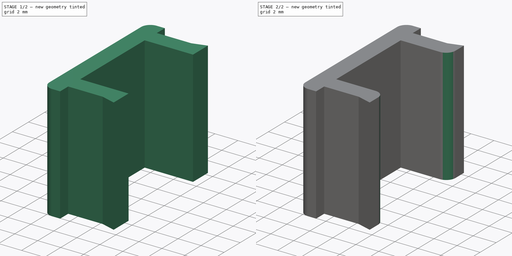
[diagram: build sequence overview — one tinted view per stage of 2, left to right]
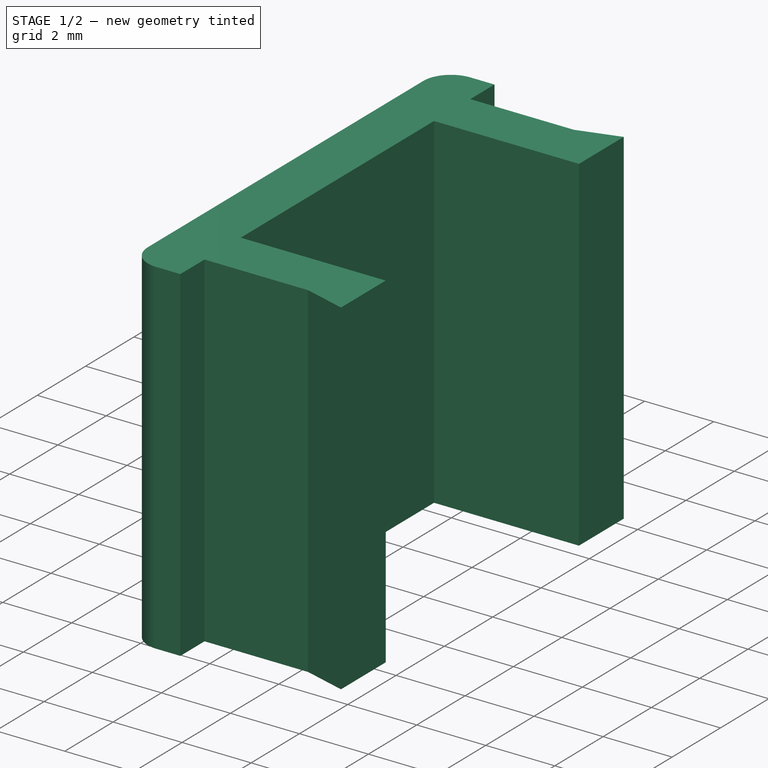
[diagram: stage 1 of 2 — iso view after this stage's code; geometry added in this stage tinted green]
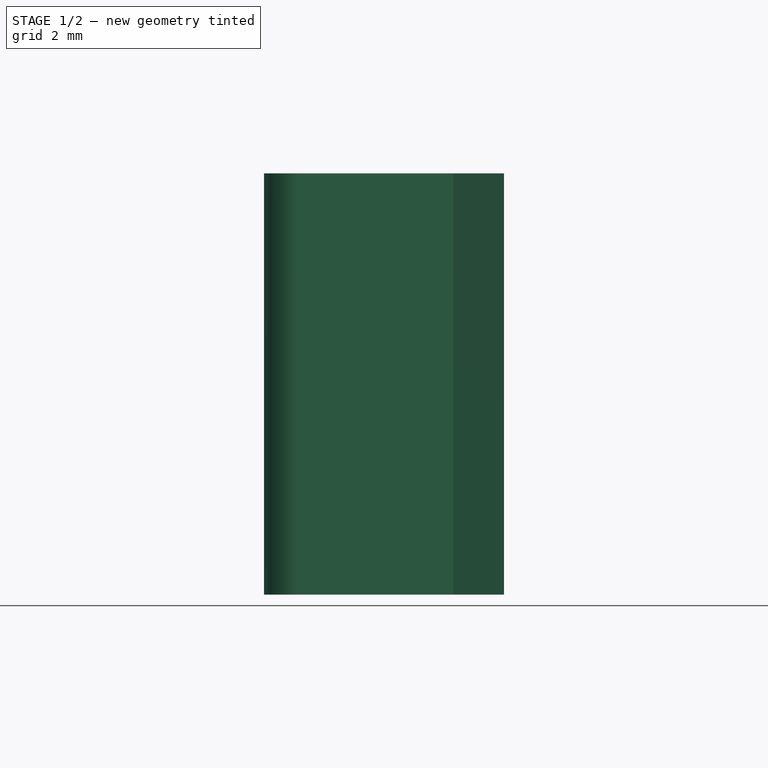
[diagram: stage 1 of 2 — front view after this stage's code; geometry added in this stage tinted green]
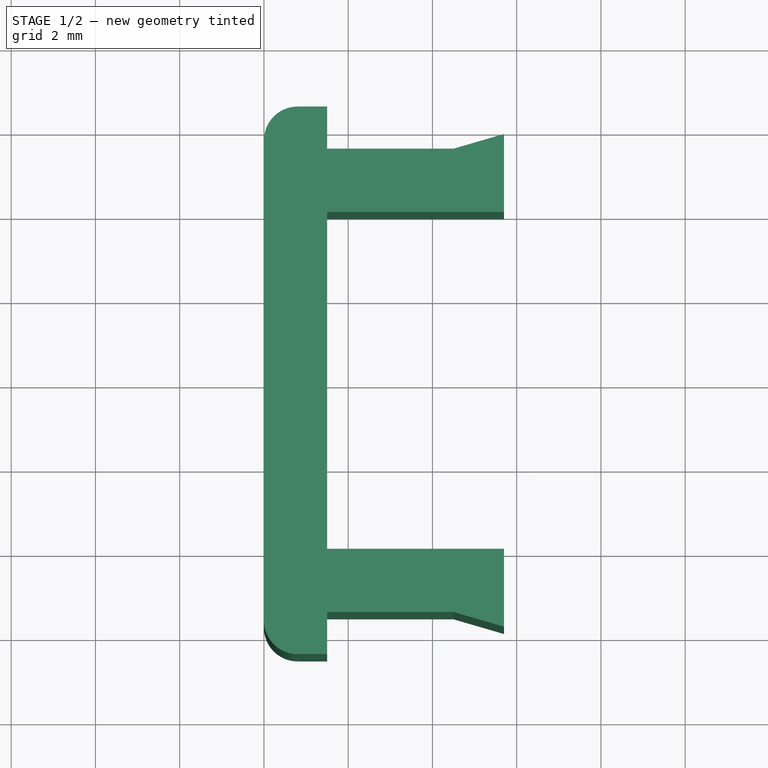
[diagram: stage 1 of 2 — top view after this stage's code; geometry added in this stage tinted green]
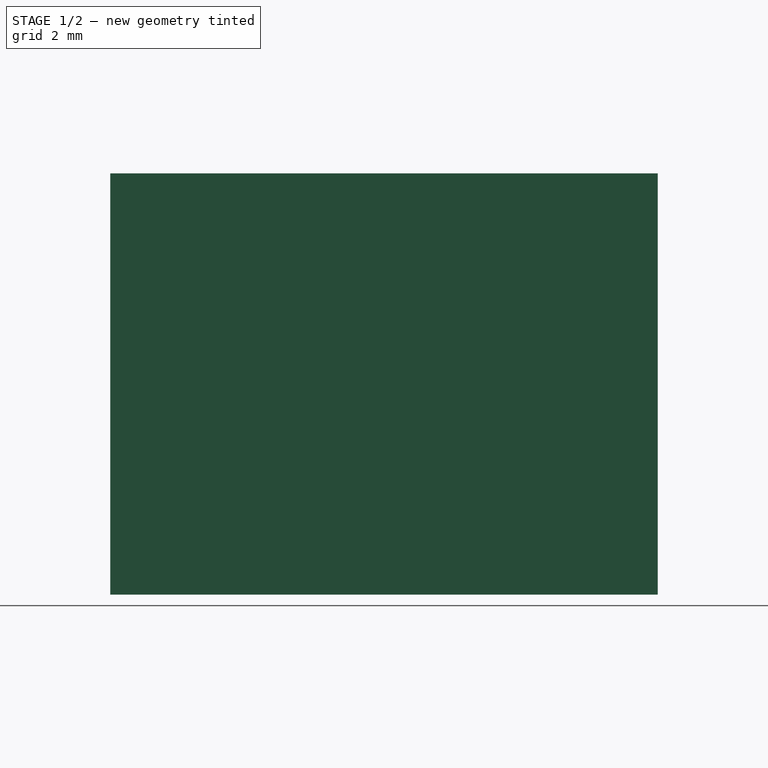
[diagram: stage 1 of 2 — right view after this stage's code; geometry added in this stage tinted green]
FCSTD DOCUMENT  (FreeCAD 0.19R24415 (Git))
Label: FlexLink Cable Clip
License: All rights reserved
LicenseURL: http://en.wikipedia.org/wiki/All_rights_reserved
objects: PartDesign::Fillet×2, Sketcher::SketchObject×1, PartDesign::Pad×1, PartDesign::Body×1
note: 8 computed .brp shape members not serialized (recipe doc carries the construction recipe); baked Part::Feature solids carry a one-line shape summary decoded from their .brp

FEATURE [Sketcher::SketchObject] Sketch
  FullyConstrained = true
  MapMode = 5
  Support = -> [XY_Plane]
  sketch-geometry (16):
    g0: LineSegment StartX=5.7 StartY=-5.85 StartZ=0 EndX=5.7 EndY=-4 EndZ=0
    g1: LineSegment StartX=5.7 StartY=-4 StartZ=0 EndX=1.5 EndY=-4 EndZ=0
    g2: LineSegment StartX=1.5 StartY=-4 StartZ=0 EndX=1.5 EndY=4 EndZ=0
    g3: LineSegment StartX=1.5 StartY=4 StartZ=0 EndX=5.7 EndY=4 EndZ=0
    g4: LineSegment StartX=5.7 StartY=4 StartZ=0 EndX=5.7 EndY=5.85 EndZ=0
    g5: LineSegment StartX=4.5 StartY=5.5 StartZ=0 EndX=5.7 EndY=5.85 EndZ=0
    g6: LineSegment StartX=4.5 StartY=-5.5 StartZ=0 EndX=5.7 EndY=-5.85 EndZ=0
    g7: LineSegment StartX=4.5 StartY=4 StartZ=0 EndX=4.5 EndY=5.5 EndZ=0
    g8: LineSegment StartX=4.5 StartY=5.5 StartZ=0 EndX=1.5 EndY=5.5 EndZ=0
    g9: LineSegment StartX=1.5 StartY=5.5 StartZ=0 EndX=1.5 EndY=6.5 EndZ=0
    g10: LineSegment StartX=1.5 StartY=6.5 StartZ=0 EndX=0 EndY=6.5 EndZ=0
    g11: LineSegment StartX=0 StartY=6.5 StartZ=0 EndX=0 EndY=-6.5 EndZ=0
    g12: LineSegment StartX=0 StartY=-6.5 StartZ=0 EndX=1.5 EndY=-6.5 EndZ=0
    g13: LineSegment StartX=1.5 StartY=-6.5 StartZ=0 EndX=1.5 EndY=-5.5 EndZ=0
    g14: LineSegment StartX=1.5 StartY=-5.5 StartZ=0 EndX=4.5 EndY=-5.5 EndZ=0
    g15: GeomPoint X=1.5 Y=0 Z=0
  constraints (45):
    c: Vertical(g0)
    c: Coincident(g0,g1)
    c: Horizontal(g1)
    c: Coincident(g1,g2)
    c: Vertical(g2)
    c: Horizontal(g3)
    c: Coincident(g3,g4)
    c: Vertical(g4)
    c: Equal(g4,g0)
    c: Equal(g3,g1)
    c: Coincident(g5,g4)
    c: Coincident(g6,g0)
    c: Equal(g6,g5)
    c: Coincident(g3,g2)
    c: PointOnObject(g7,g3)
    c: Coincident(g7,g5)
    c: Vertical(g7)
    c: Coincident(g5,g8)
    c: Horizontal(g8)
    c: Coincident(g8,g9)
    c: Vertical(g9)
    c: Coincident(g9,g10)
    c: PointOnObject(g10,g-2)
    c: Horizontal(g10)
    c: Coincident(g10,g11)
    c: Coincident(g11,g12)
    c: Horizontal(g12)
    c: Coincident(g12,g13)
    c: Vertical(g13)
    c: Coincident(g13,g14)
    c: Coincident(g14,g6)
    c: Horizontal(g14)
    c: Symmetric(g11,g10,g-1)
    c: Equal(g13,g9)
    c: Equal(g12,g10)
    c: DistanceY(g11,g11) = 13
    c: DistanceY(g13,g8) = 11
    c: PointOnObject(g15,g-1)
    c: Symmetric(g1,g2,g15)
    c: DistanceX(g8,g8) = 3
    c: DistanceX(g10,g10) = 1.5
    c: DistanceX(g-1,g15) = 1.5
    c: DistanceY(g7,g7) = 1.5
    c: DistanceY(g0,g4) = 11.7
    c: DistanceX(g3,g3) = 4.2
FEATURE [PartDesign::Pad] Pad
  Direction = (1,1,1)
  Length = 10
  Length2 = 100
  Profile = -> Sketch
  Type = 0
FEATURE [PartDesign::Fillet] Fillet
  Base = -> Pad [Edge26,Edge29]
  BaseFeature = -> Pad
  Radius = 0.8
  SupportTransform = false
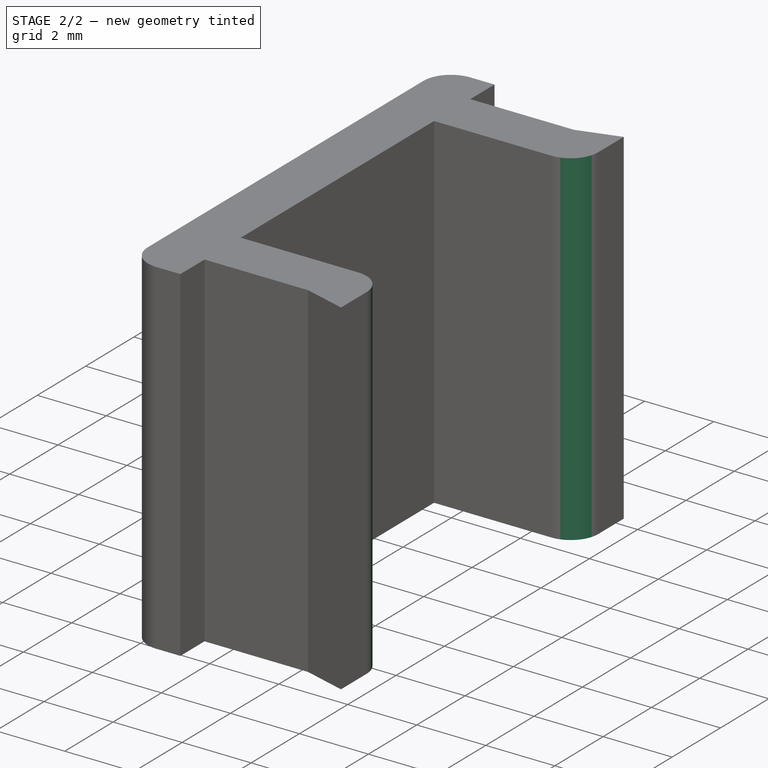
[diagram: stage 2 of 2 — iso view after this stage's code; geometry added in this stage tinted green]
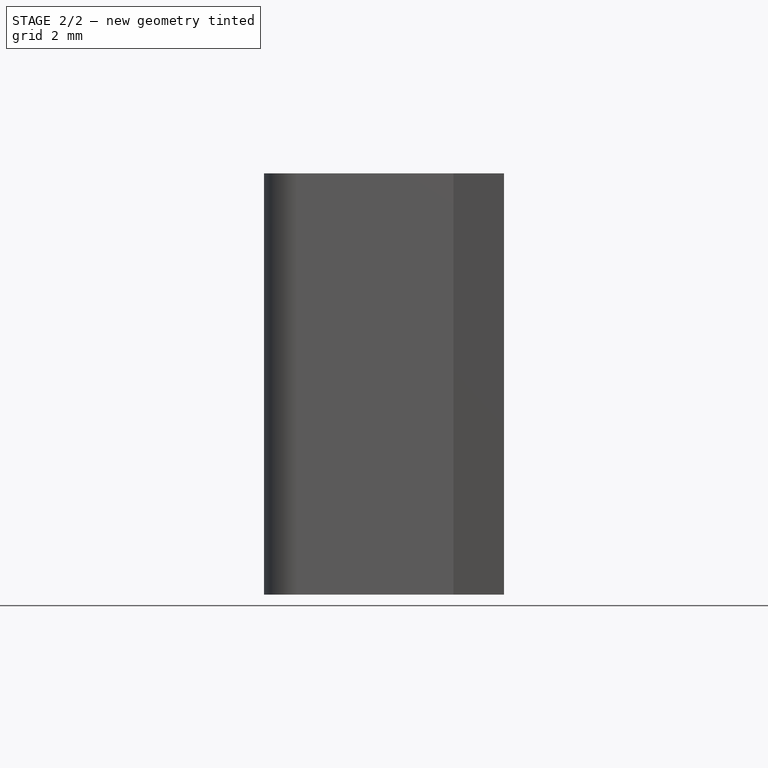
[diagram: stage 2 of 2 — front view after this stage's code; geometry added in this stage tinted green]
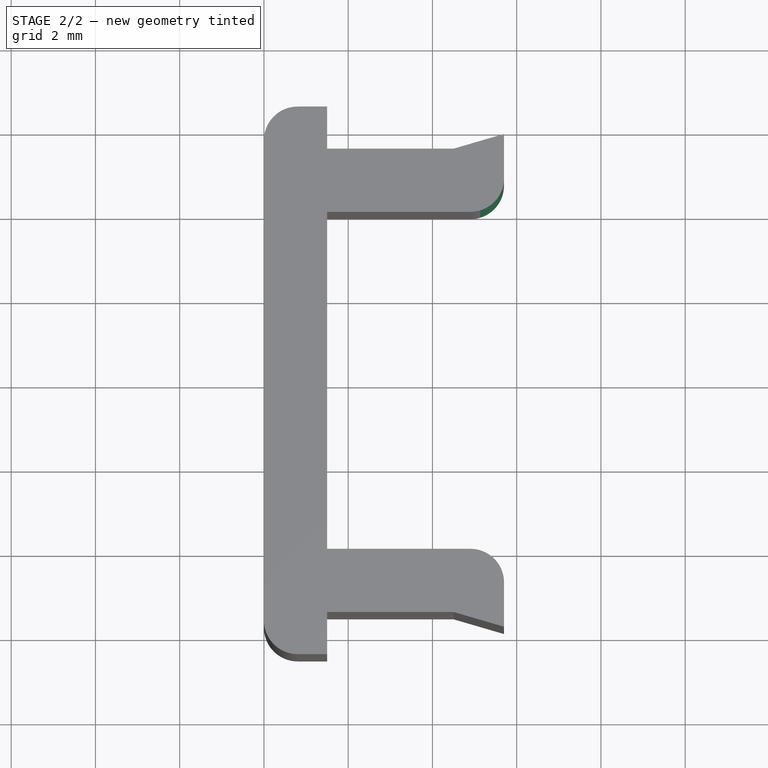
[diagram: stage 2 of 2 — top view after this stage's code; geometry added in this stage tinted green]
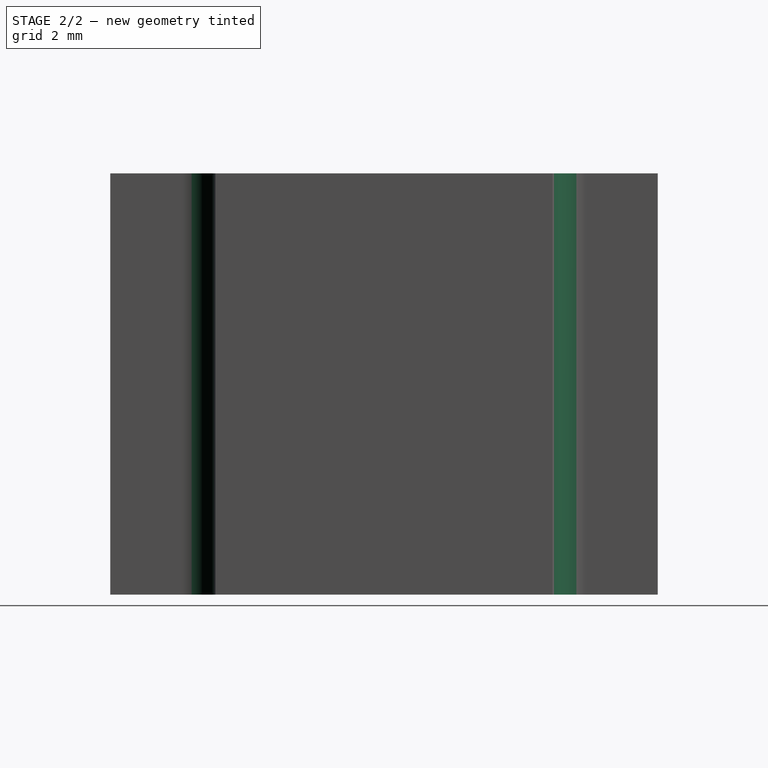
[diagram: stage 2 of 2 — right view after this stage's code; geometry added in this stage tinted green]
FEATURE [PartDesign::Fillet] Fillet001
  Base = -> Fillet [Edge42,Edge48]
  BaseFeature = -> Fillet
  Radius = 0.8
  SupportTransform = false
FEATURE [PartDesign::Body] Body  label="FlexLink Cable Clip"
  Group = -> [Sketch,Pad,Fillet,Fillet001]
  Origin = -> Origin
  Tip = -> Fillet001
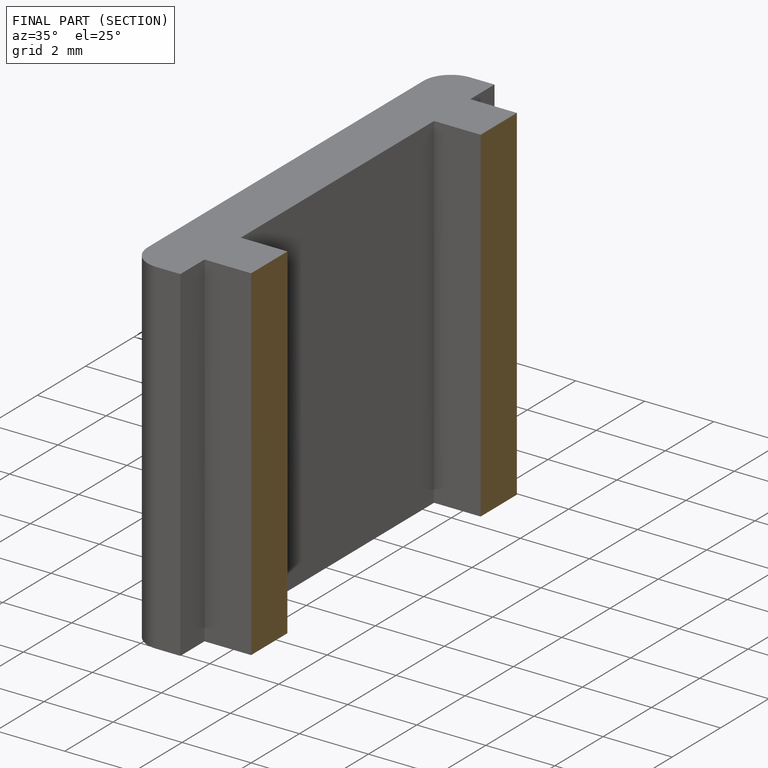
[diagram: finished part — half-section view (interior)]
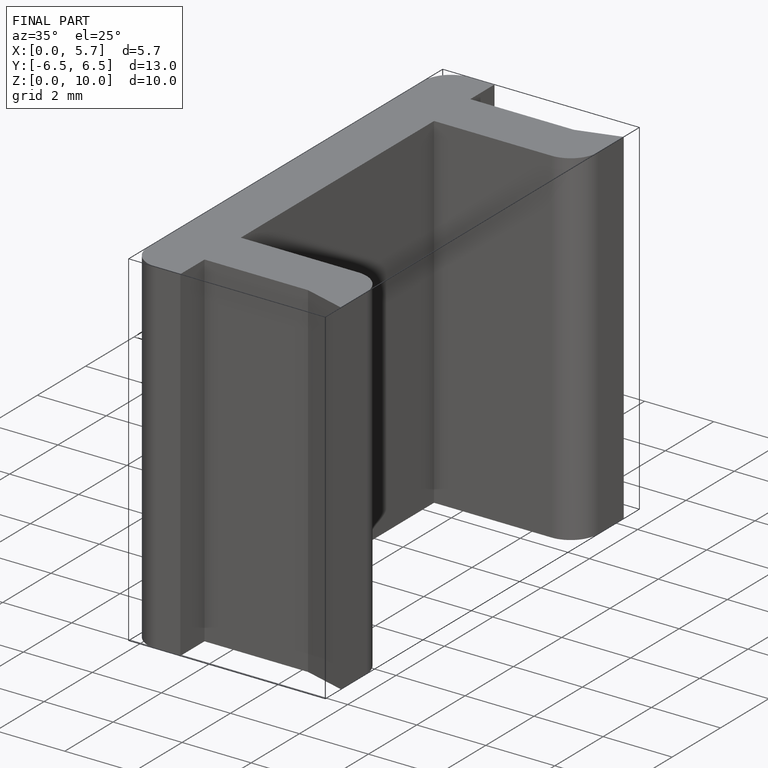
[diagram: finished part — iso view with bounding-box wireframe]
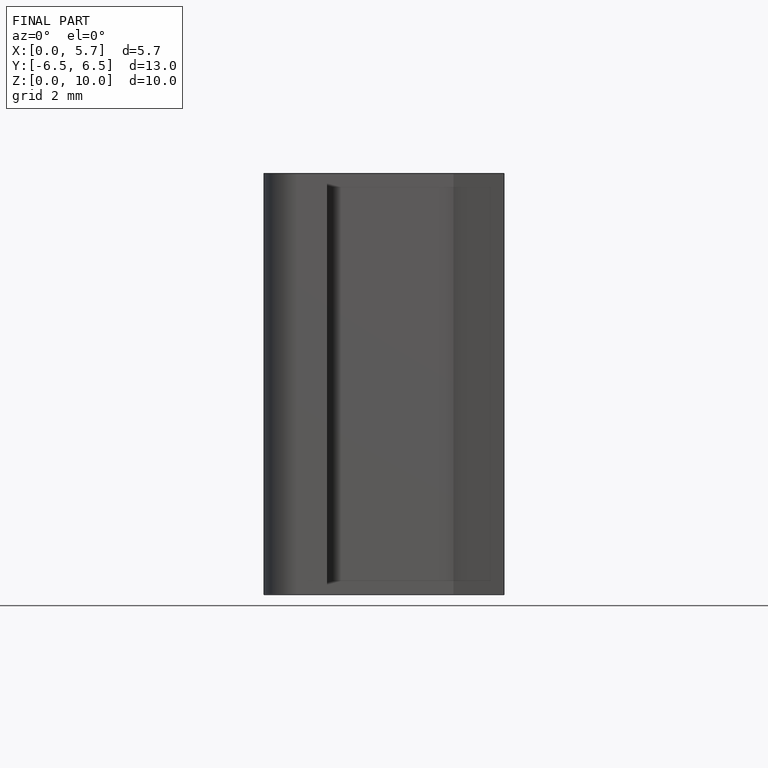
[diagram: finished part — front view with bounding-box wireframe]
